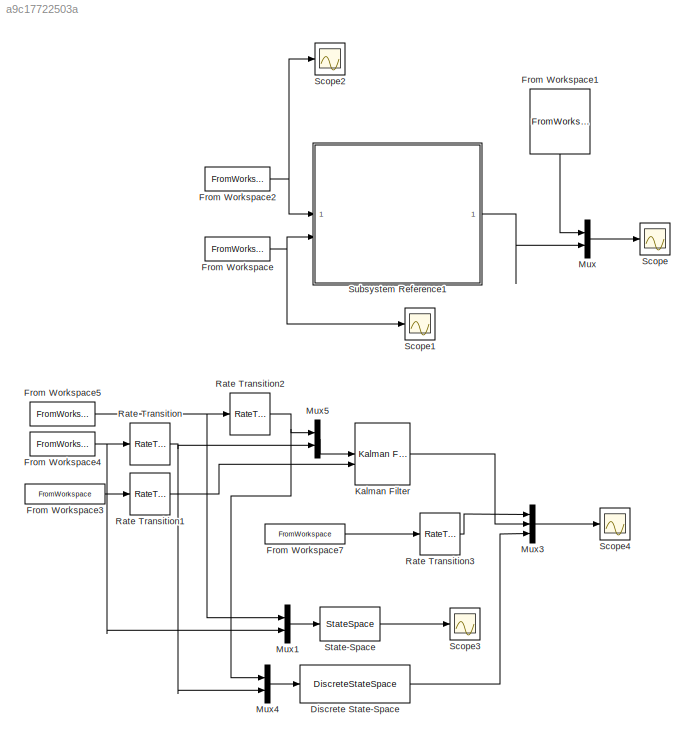
MODEL slx_a9c17722503a
KIND model
CONFIG AbsTol = auto
CONFIG EnableMultiTasking = on
CONFIG FixedStep = 0.0001
CONFIG MaxStep = auto
CONFIG MinStep = 0.005
CONFIG RelTol = 1e-3
CONFIG SampleTimeConstraint = Unconstrained
CONFIG SolverName = FixedStepAuto
CONFIG StartTime = 0.0
CONFIG StopTime = 31
BLOCK [DiscreteStateSpace] Discrete State-Space
  A = Ad
  B = Bd
  C = Cd
  Commented = on
  D = [0 0]
  SampleTime = 0.005
BLOCK [FromWorkspace] From Workspace
  VariableName = speed
BLOCK [FromWorkspace] From Workspace1
  NameLocation = left
  VariableName = current_raw
BLOCK [FromWorkspace] From Workspace2
  VariableName = voltage
BLOCK [FromWorkspace] From Workspace3
  Commented = on
  VariableName = current_raw
BLOCK [FromWorkspace] From Workspace4
  Commented = on
  VariableName = speed
BLOCK [FromWorkspace] From Workspace5
  Commented = on
  VariableName = voltage
BLOCK [FromWorkspace] From Workspace7
  Commented = on
  VariableName = current
BLOCK [Reference] Kalman Filter  REF=ctrlSharedLib/Kalman Filter
  Commented = on
  LibrarySourceBlock = cstblocks/State Estimation/Kalman Filter
  SourceBlock = ctrlSharedLib/Kalman Filter
  SourceType = ctrlKalmanFilter
BLOCK [Mux] Mux
  DisplayOption = bar
  Inputs = 2
BLOCK [Mux] Mux1
  Commented = on
  DisplayOption = bar
  Inputs = 2
BLOCK [Mux] Mux3
  Commented = on
  DisplayOption = bar
  Inputs = 3
BLOCK [Mux] Mux4
  Commented = on
  DisplayOption = bar
  Inputs = 2
BLOCK [Mux] Mux5
  Commented = on
  DisplayOption = bar
  Inputs = 2
BLOCK [RateTransition] Rate Transition
  Commented = on
  OutPortSampleTime = 0.005
BLOCK [RateTransition] Rate Transition1
  Commented = on
  OutPortSampleTime = 0.005
BLOCK [RateTransition] Rate Transition2
  Commented = on
  OutPortSampleTime = 0.005
BLOCK [RateTransition] Rate Transition3
  Commented = on
  OutPortSampleTime = 0.005
BLOCK [Scope] Scope
  Floating = off
  NumInputPorts = 1
  ScopeSpecificationString = Simulink.scopes.TimeScopeBlockCfg('CurrentConfiguration', extmgr.ConfigurationSet(extmgr.Configuration('Core','General UI',true),extmgr.Configuration('Core','Source UI',true),extmgr.Configuration('Sources','WiredSimulink',true),extmgr.Configuration('Visuals','Time Domain',true,'PlotType','Stairs','SerializedDisplays',{struct('MinYLimReal','-0.18928','MaxYLimReal','1.47093','YLabelReal','Current [A...<+1755ch>
BLOCK [Scope] Scope1
  Floating = off
  NumInputPorts = 1
  ScopeSpecificationString = Simulink.scopes.TimeScopeBlockCfg('CurrentConfiguration', extmgr.ConfigurationSet(extmgr.Configuration('Core','General UI',true),extmgr.Configuration('Core','Source UI',true),extmgr.Configuration('Sources','WiredSimulink',true,'DataLoggingVariableName','ScopeData1'),extmgr.Configuration('Visuals','Time Domain',true,'PlotType','Stairs','SerializedDisplays',{struct('MinYLimReal','4.28577','MaxYLimRe...<+1466ch>
BLOCK [Scope] Scope2
  Floating = off
  NumInputPorts = 1
  ScopeSpecificationString = Simulink.scopes.TimeScopeBlockCfg('CurrentConfiguration', extmgr.ConfigurationSet(extmgr.Configuration('Core','General UI',true),extmgr.Configuration('Core','Source UI',true),extmgr.Configuration('Sources','WiredSimulink',true,'DataLoggingVariableName','ScopeData2'),extmgr.Configuration('Visuals','Time Domain',true,'SerializedDisplays',{struct('MinYLimReal','-1.5','MaxYLimReal','13.5','YLabelReal'...<+1404ch>
BLOCK [Scope] Scope3
  Commented = on
  Floating = off
  NumInputPorts = 1
  ScopeSpecificationString = Simulink.scopes.TimeScopeBlockCfg('CurrentConfiguration', extmgr.ConfigurationSet(extmgr.Configuration('Core','General UI',true),extmgr.Configuration('Core','Source UI',true),extmgr.Configuration('Sources','WiredSimulink',true,'DataLoggingVariableName','ScopeData2'),extmgr.Configuration('Visuals','Time Domain',true,'PlotType','Stairs','SerializedDisplays',{struct('MinYLimReal','-0.32134','MaxYLimR...<+1500ch>
BLOCK [Scope] Scope4
  Commented = on
  Floating = off
  NumInputPorts = 1
  ScopeSpecificationString = Simulink.scopes.TimeScopeBlockCfg('CurrentConfiguration', extmgr.ConfigurationSet(extmgr.Configuration('Core','General UI',true),extmgr.Configuration('Core','Source UI',true),extmgr.Configuration('Sources','WiredSimulink',true,'DataLoggingVariableName','ScopeData3'),extmgr.Configuration('Visuals','Time Domain',true,'PlotType','Stairs','SerializedDisplays',{struct('MinYLimReal','0.0845','MaxYLimRea...<+1502ch>
BLOCK [StateSpace] State-Space
  A = A
  B = B
  C = C
  Commented = on
  D = [0 0]
  InitialCondition = 0
BLOCK [SubSystem] Subsystem Reference1
  K = 1.339
  L = 2.3e-3
  R = 1.7
  ReferencedSubsystem = pololu_37D_torque_first_order
LINE Discrete State-Space:1 -> Mux3:3
LINE From Workspace1:1 -> Mux:1
NET From Workspace2:1 -> Scope2:1, Subsystem Reference1:1
LINE From Workspace3:1 -> Rate Transition1:1
NET From Workspace4:1 -> Mux1:2, Rate Transition:1
NET From Workspace5:1 -> Mux1:1, Rate Transition2:1
LINE From Workspace7:1 -> Rate Transition3:1
NET From Workspace:1 -> Scope1:1, Subsystem Reference1:2
LINE Kalman Filter:1 -> Mux3:2
LINE Mux1:1 -> State-Space:1
LINE Mux3:1 -> Scope4:1
LINE Mux4:1 -> Discrete State-Space:1
LINE Mux5:1 -> Kalman Filter:1
LINE Mux:1 -> Scope:1
LINE Rate Transition1:1 -> Kalman Filter:2
NET Rate Transition2:1 -> Mux4:1, Mux5:1
LINE Rate Transition3:1 -> Mux3:1
NET Rate Transition:1 -> Mux4:2, Mux5:2
LINE State-Space:1 -> Scope3:1
LINE Subsystem Reference1:1 -> Mux:2
note: NET lines group one-source signal fan-out (src -> all destinations, sorted); 1:1 wires keep LINE
